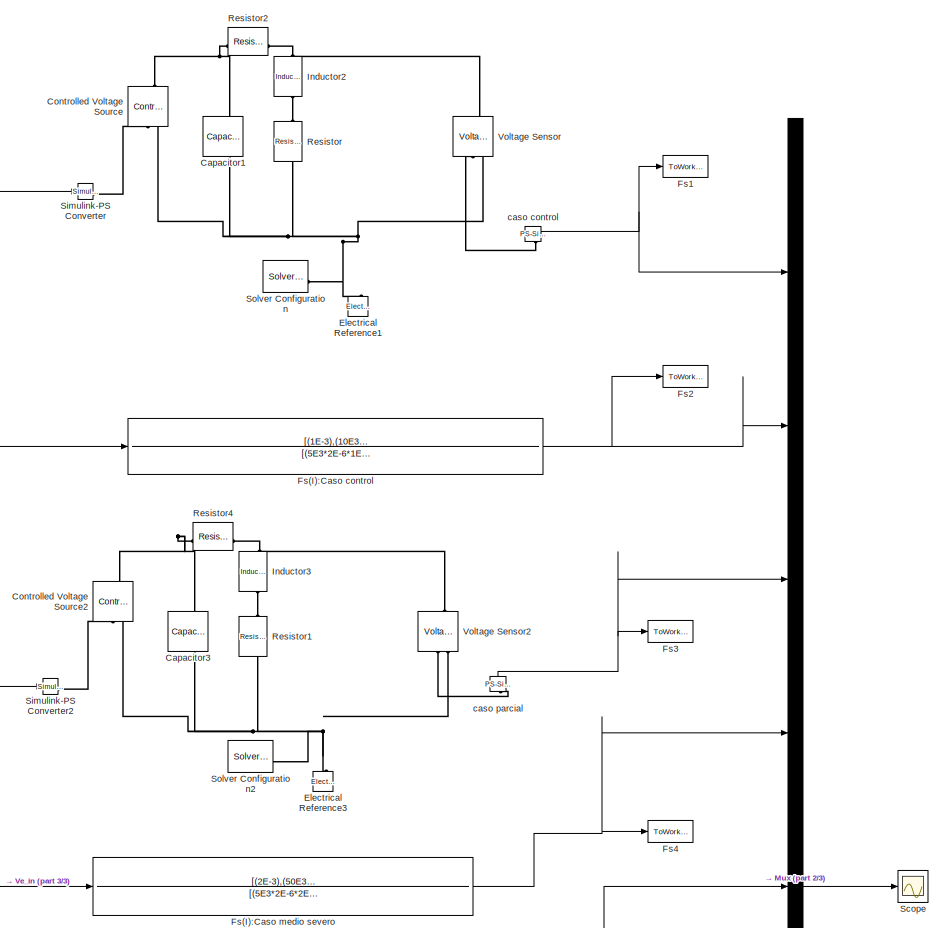
[diagram: root canvas - part 1/3, full width, top band]
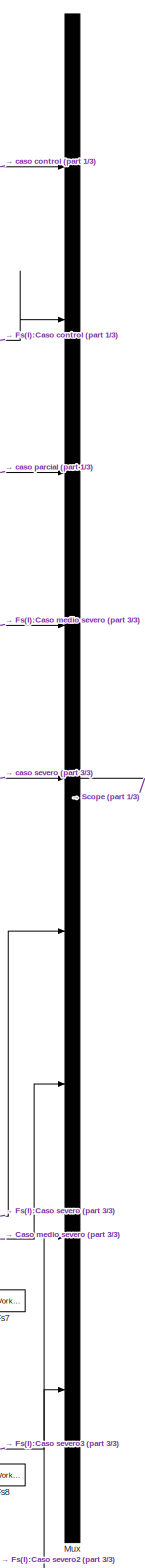
[diagram: root canvas - part 2/3, right side, full height]
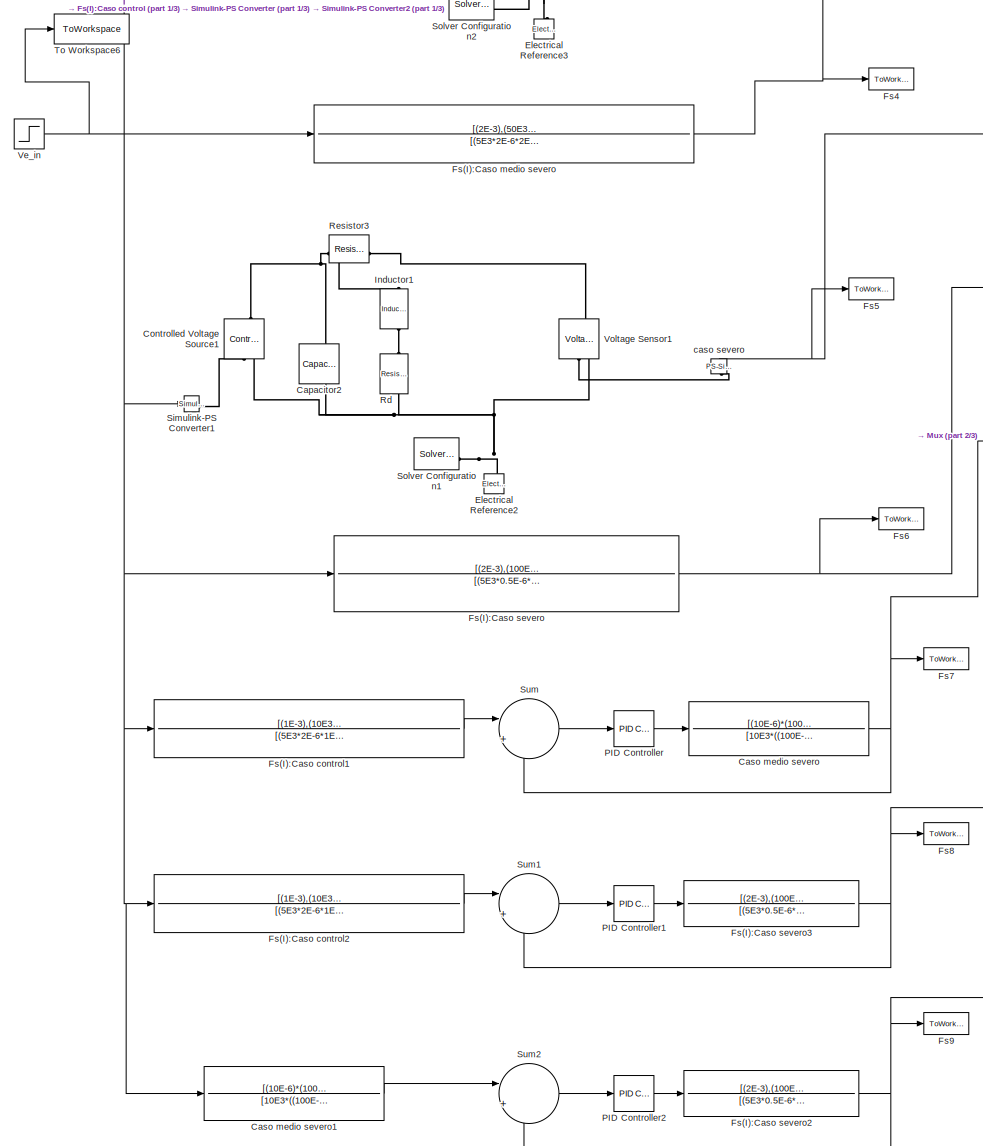
[diagram: root canvas - part 3/3, full width, bottom band]
MODEL slx_ab17da6a1537
KIND model
CONFIG AbsTol = auto
CONFIG EnableMultiTasking = off
CONFIG FixedStep = auto
CONFIG MaxStep = 1E-3
CONFIG MinStep = auto
CONFIG RelTol = 1e-3
CONFIG SampleTimeConstraint = Unconstrained
CONFIG SolverName = ode15s
CONFIG StartTime = 0.0
CONFIG StopTime = 10.0
BLOCK [Reference] Capacitor1  REF=fl_lib/Electrical/Electrical Elements/Capacitor
  NameLocation = left
  SourceBlock = fl_lib/Electrical/Electrical Elements/Capacitor
  SourceType = Capacitor
BLOCK [Reference] Capacitor2  REF=fl_lib/Electrical/Electrical Elements/Capacitor
  NameLocation = left
  SourceBlock = fl_lib/Electrical/Electrical Elements/Capacitor
  SourceType = Capacitor
BLOCK [Reference] Capacitor3  REF=fl_lib/Electrical/Electrical Elements/Capacitor
  NameLocation = left
  SourceBlock = fl_lib/Electrical/Electrical Elements/Capacitor
  SourceType = Capacitor
BLOCK [TransferFcn] Caso medio severo
  Denominator = [10E3*((100E-6)+(10E-6)),1]
  Numerator = [(10E-6)*(100),0.75]
BLOCK [TransferFcn] Caso medio severo1
  Denominator = [10E3*((100E-6)+(10E-6)),1]
  Numerator = [(10E-6)*(100),0.75]
BLOCK [Reference] Controlled Voltage Source  REF=fl_lib/Electrical/Electrical Sources/Controlled Voltage
Source
  NameLocation = right
  SourceBlock = fl_lib/Electrical/Electrical Sources/Controlled Voltage\nSource
  SourceType = Controlled Voltage\nSource
BLOCK [Reference] Controlled Voltage Source1  REF=fl_lib/Electrical/Electrical Sources/Controlled Voltage
Source
  NameLocation = right
  SourceBlock = fl_lib/Electrical/Electrical Sources/Controlled Voltage\nSource
  SourceType = Controlled Voltage\nSource
BLOCK [Reference] Controlled Voltage Source2  REF=fl_lib/Electrical/Electrical Sources/Controlled Voltage
Source
  NameLocation = right
  SourceBlock = fl_lib/Electrical/Electrical Sources/Controlled Voltage\nSource
  SourceType = Controlled Voltage\nSource
BLOCK [Reference] Electrical Reference1  REF=fl_lib/Electrical/Electrical Elements/Electrical Reference
  LibrarySourceBlock = ee_lib/Connectors &\nReferences/Electrical Reference
  NameLocation = right
  SourceBlock = fl_lib/Electrical/Electrical Elements/Electrical Reference
  SourceType = Electrical Reference
BLOCK [Reference] Electrical Reference2  REF=fl_lib/Electrical/Electrical Elements/Electrical Reference
  LibrarySourceBlock = ee_lib/Connectors &\nReferences/Electrical Reference
  NameLocation = right
  SourceBlock = fl_lib/Electrical/Electrical Elements/Electrical Reference
  SourceType = Electrical Reference
BLOCK [Reference] Electrical Reference3  REF=fl_lib/Electrical/Electrical Elements/Electrical Reference
  LibrarySourceBlock = ee_lib/Connectors &\nReferences/Electrical Reference
  NameLocation = right
  SourceBlock = fl_lib/Electrical/Electrical Elements/Electrical Reference
  SourceType = Electrical Reference
BLOCK [TransferFcn] Fs(I):Caso control
  Denominator = [(5E3*2E-6*1E-3),(1E-3+5E3*2E-6*10E3),(5E3+10E3)]
  Numerator = [(1E-3),(10E3)]
BLOCK [TransferFcn] Fs(I):Caso control1
  Denominator = [(5E3*2E-6*1E-3),(1E-3+5E3*2E-6*10E3),(5E3+10E3)]
  Numerator = [(1E-3),(10E3)]
BLOCK [TransferFcn] Fs(I):Caso control2
  Denominator = [(5E3*2E-6*1E-3),(1E-3+5E3*2E-6*10E3),(5E3+10E3)]
  Numerator = [(1E-3),(10E3)]
BLOCK [TransferFcn] Fs(I):Caso medio severo
  Denominator = [(5E3*2E-6*2E-3),(2E-3+5E3*2E-6*50E3),(5E3+50E3)]
  Numerator = [(2E-3),(50E3)]
BLOCK [TransferFcn] Fs(I):Caso severo
  Denominator = [(5E3*0.5E-6*2E-3),(2E-3+5E3*0.5E-6*100E3),(5E3+100E3)]
  Numerator = [(2E-3),(100E3)]
BLOCK [TransferFcn] Fs(I):Caso severo2
  Denominator = [(5E3*0.5E-6*2E-3),(2E-3+5E3*0.5E-6*100E3),(5E3+100E3)]
  Numerator = [(2E-3),(100E3)]
BLOCK [TransferFcn] Fs(I):Caso severo3
  Denominator = [(5E3*0.5E-6*2E-3),(2E-3+5E3*0.5E-6*100E3),(5E3+100E3)]
  Numerator = [(2E-3),(100E3)]
BLOCK [ToWorkspace] Fs1
  FixptAsFi = on
  MaxDataPoints = inf
  SampleTime = -1
  VariableName = Fs1
BLOCK [ToWorkspace] Fs2
  FixptAsFi = on
  MaxDataPoints = inf
  SampleTime = -1
  VariableName = Fs2
BLOCK [ToWorkspace] Fs3
  FixptAsFi = on
  MaxDataPoints = inf
  SampleTime = -1
  VariableName = Fs3
BLOCK [ToWorkspace] Fs4
  FixptAsFi = on
  MaxDataPoints = inf
  SampleTime = -1
  VariableName = Fs4
BLOCK [ToWorkspace] Fs5
  FixptAsFi = on
  MaxDataPoints = inf
  SampleTime = -1
  VariableName = Fs5
BLOCK [ToWorkspace] Fs6
  FixptAsFi = on
  MaxDataPoints = inf
  SampleTime = -1
  VariableName = Fs6
BLOCK [ToWorkspace] Fs7
  FixptAsFi = on
  MaxDataPoints = inf
  SampleTime = -1
  VariableName = Fs7
BLOCK [ToWorkspace] Fs8
  FixptAsFi = on
  MaxDataPoints = inf
  SampleTime = -1
  VariableName = Fs8
BLOCK [ToWorkspace] Fs9
  FixptAsFi = on
  MaxDataPoints = inf
  SampleTime = -1
  VariableName = Fs9
BLOCK [Reference] Inductor1  REF=fl_lib/Electrical/Electrical Elements/Inductor
  NameLocation = left
  SourceBlock = fl_lib/Electrical/Electrical Elements/Inductor
  SourceType = Inductor
BLOCK [Reference] Inductor2  REF=fl_lib/Electrical/Electrical Elements/Inductor
  NameLocation = left
  SourceBlock = fl_lib/Electrical/Electrical Elements/Inductor
  SourceType = Inductor
BLOCK [Reference] Inductor3  REF=fl_lib/Electrical/Electrical Elements/Inductor
  NameLocation = left
  SourceBlock = fl_lib/Electrical/Electrical Elements/Inductor
  SourceType = Inductor
BLOCK [Mux] Mux
  DisplayOption = bar
  Inputs = 9
BLOCK [Reference] PID Controller  REF=slpidlib/PID Controller
  LibrarySourceBlock = simulink/Continuous/PID Controller
  SourceBlock = slpidlib/PID Controller
  SourceType = PID 1dof
BLOCK [Reference] PID Controller1  REF=slpidlib/PID Controller
  LibrarySourceBlock = simulink/Continuous/PID Controller
  SourceBlock = slpidlib/PID Controller
  SourceType = PID 1dof
BLOCK [Reference] PID Controller2  REF=slpidlib/PID Controller
  LibrarySourceBlock = simulink/Continuous/PID Controller
  SourceBlock = slpidlib/PID Controller
  SourceType = PID 1dof
BLOCK [Reference] Rd  REF=fl_lib/Electrical/Electrical Elements/Resistor
  NameLocation = left
  SourceBlock = fl_lib/Electrical/Electrical Elements/Resistor
  SourceType = Resistor
BLOCK [Reference] Resistor  REF=fl_lib/Electrical/Electrical Elements/Resistor
  NameLocation = right
  SourceBlock = fl_lib/Electrical/Electrical Elements/Resistor
  SourceType = Resistor
BLOCK [Reference] Resistor1  REF=fl_lib/Electrical/Electrical Elements/Resistor
  NameLocation = right
  SourceBlock = fl_lib/Electrical/Electrical Elements/Resistor
  SourceType = Resistor
BLOCK [Reference] Resistor2  REF=fl_lib/Electrical/Electrical Elements/Resistor
  NameLocation = top
  SourceBlock = fl_lib/Electrical/Electrical Elements/Resistor
  SourceType = Resistor
BLOCK [Reference] Resistor3  REF=fl_lib/Electrical/Electrical Elements/Resistor
  NameLocation = top
  SourceBlock = fl_lib/Electrical/Electrical Elements/Resistor
  SourceType = Resistor
BLOCK [Reference] Resistor4  REF=fl_lib/Electrical/Electrical Elements/Resistor
  NameLocation = top
  SourceBlock = fl_lib/Electrical/Electrical Elements/Resistor
  SourceType = Resistor
BLOCK [Scope] Scope
  ActiveDisplayYMaximum = 1.1249943755905629
  ActiveDisplayYMinimum = -0.12499937506561808
  ContainerLayout = {"WindowBounds":[-8720,1363,711,765]}
  Floating = off
  GraphicalSettings = {"Style":{"BackgroundColor":[0.12941176470588237,0.12941176470588237,0.12941176470588237],"AxesColor":[0.07058823529411765,0.07058823529411765,0.07058823529411765],"LabelsColor":[0.8509803921568627,0.8509803921568627,0.8509803921568627],"PreserveColors":false,"Visible":[true,true,true,true,true,true,true,true,true],"LineStyle":["-","-","-","-","-","-","-","-","-"],"LineWidth":[1.5,1.5,1.5,1.5,1.5,...<+3043ch>
  MultipleDisplayCache = [{"MaxYLimMag":1.1249943755905629,"MaxYLimReal":1.1249943755905629,"MinYLimMag":0,"MinYLimReal":-0.12499937506561808,"PlotAsMagnitudePhase":false,"ShowGrid":true,"ShowLegend":true,"Title":"%<SignalLabel>","YLabel":""}]
  NumInputPorts = 1
  ScopeFrameLocation = window
  ShowLegend = on
  Visible = on
  WasSavedAsWebScope = on
  WindowPosition = [1280.000122,144.999939,713.000061,768.000061,]
BLOCK [Reference] Simulink-PS Converter  REF=nesl_utility/Simulink-PS
Converter
  SourceBlock = nesl_utility/Simulink-PS\nConverter
  SourceType = Simulink-PS\nConverter
BLOCK [Reference] Simulink-PS Converter1  REF=nesl_utility/Simulink-PS
Converter
  SourceBlock = nesl_utility/Simulink-PS\nConverter
  SourceType = Simulink-PS\nConverter
BLOCK [Reference] Simulink-PS Converter2  REF=nesl_utility/Simulink-PS
Converter
  SourceBlock = nesl_utility/Simulink-PS\nConverter
  SourceType = Simulink-PS\nConverter
BLOCK [Reference] Solver Configuration  REF=nesl_utility/Solver
Configuration
  SourceBlock = nesl_utility/Solver\nConfiguration
  SourceType = Solver\nConfiguration
BLOCK [Reference] Solver Configuration1  REF=nesl_utility/Solver
Configuration
  SourceBlock = nesl_utility/Solver\nConfiguration
  SourceType = Solver\nConfiguration
BLOCK [Reference] Solver Configuration2  REF=nesl_utility/Solver
Configuration
  SourceBlock = nesl_utility/Solver\nConfiguration
  SourceType = Solver\nConfiguration
BLOCK [Sum] Sum
  Inputs = |+-
BLOCK [Sum] Sum1
  Inputs = |+-
BLOCK [Sum] Sum2
  Inputs = |+-
BLOCK [ToWorkspace] To Workspace6
  FixptAsFi = on
  MaxDataPoints = inf
  SampleTime = -1
  VariableName = Ve
BLOCK [Step] Ve_in
  SampleTime = 0
BLOCK [Reference] Voltage Sensor  REF=fl_lib/Electrical/Electrical Sensors/Voltage Sensor
  NameLocation = right
  SourceBlock = fl_lib/Electrical/Electrical Sensors/Voltage Sensor
  SourceType = Voltage Sensor
BLOCK [Reference] Voltage Sensor1  REF=fl_lib/Electrical/Electrical Sensors/Voltage Sensor
  NameLocation = right
  SourceBlock = fl_lib/Electrical/Electrical Sensors/Voltage Sensor
  SourceType = Voltage Sensor
BLOCK [Reference] Voltage Sensor2  REF=fl_lib/Electrical/Electrical Sensors/Voltage Sensor
  NameLocation = right
  SourceBlock = fl_lib/Electrical/Electrical Sensors/Voltage Sensor
  SourceType = Voltage Sensor
BLOCK [Reference] caso control  REF=nesl_utility/PS-Simulink
Converter
  NameLocation = right
  SourceBlock = nesl_utility/PS-Simulink\nConverter
  SourceType = PS-Simulink\nConverter
BLOCK [Reference] caso parcial  REF=nesl_utility/PS-Simulink
Converter
  NameLocation = right
  SourceBlock = nesl_utility/PS-Simulink\nConverter
  SourceType = PS-Simulink\nConverter
BLOCK [Reference] caso severo  REF=nesl_utility/PS-Simulink
Converter
  NameLocation = right
  SourceBlock = nesl_utility/PS-Simulink\nConverter
  SourceType = PS-Simulink\nConverter
LINE Caso medio severo1:1 -> Sum2:1
NET Caso medio severo:1 -> Fs7:1, Mux:7, Sum:2
LINE Fs(I):Caso control1:1 -> Sum:1
LINE Fs(I):Caso control2:1 -> Sum1:1
NET Fs(I):Caso control:1 -> Fs2:1, Mux:2
NET Fs(I):Caso medio severo:1 -> Fs4:1, Mux:4
NET Fs(I):Caso severo2:1 -> Fs9:1, Mux:9, Sum2:2
NET Fs(I):Caso severo3:1 -> Fs8:1, Mux:8, Sum1:2
NET Fs(I):Caso severo:1 -> Fs6:1, Mux:6
LINE Mux:1 -> Scope:1
LINE PID Controller1:1 -> Fs(I):Caso severo3:1
LINE PID Controller2:1 -> Fs(I):Caso severo2:1
LINE PID Controller:1 -> Caso medio severo:1
LINE Sum1:1 -> PID Controller1:1
LINE Sum2:1 -> PID Controller2:1
LINE Sum:1 -> PID Controller:1
NET Ve_in:1 -> Caso medio severo1:1, Fs(I):Caso control1:1, Fs(I):Caso control2:1, Fs(I):Caso control:1, Fs(I):Caso medio severo:1, Fs(I):Caso severo:1, Simulink-PS Converter1:1, Simulink-PS Converter2:1, Simulink-PS Converter:1, To Workspace6:1
NET caso control:1 -> Fs1:1, Mux:1
NET caso parcial:1 -> Fs3:1, Mux:3
NET caso severo:1 -> Fs5:1, Mux:5
PNET net1: Capacitor1:LConn1 -- Controlled Voltage Source:LConn1 -- Resistor2:RConn1
PNET net2: Capacitor1:RConn1 -- Controlled Voltage Source:RConn2 -- Electrical Reference1:LConn1 -- Resistor:LConn1 -- Solver Configuration:RConn1 -- Voltage Sensor:RConn2
PNET net3: Capacitor2:LConn1 -- Controlled Voltage Source1:LConn1 -- Resistor3:RConn1
PNET net4: Capacitor2:RConn1 -- Controlled Voltage Source1:RConn2 -- Electrical Reference2:LConn1 -- Rd:RConn1 -- Solver Configuration1:RConn1 -- Voltage Sensor1:RConn2
PNET net5: Capacitor3:LConn1 -- Controlled Voltage Source2:LConn1 -- Resistor4:RConn1
PNET net6: Capacitor3:RConn1 -- Controlled Voltage Source2:RConn2 -- Electrical Reference3:LConn1 -- Resistor1:LConn1 -- Solver Configuration2:RConn1 -- Voltage Sensor2:RConn2
PLINE Controlled Voltage Source1:RConn1 -- Simulink-PS Converter1:RConn1
PLINE Controlled Voltage Source2:RConn1 -- Simulink-PS Converter2:RConn1
PLINE Controlled Voltage Source:RConn1 -- Simulink-PS Converter:RConn1
PNET net7: Inductor1:LConn1 -- Resistor3:LConn1 -- Voltage Sensor1:LConn1
PLINE Inductor1:RConn1 -- Rd:LConn1
PNET net8: Inductor2:LConn1 -- Resistor2:LConn1 -- Voltage Sensor:LConn1
PLINE Inductor2:RConn1 -- Resistor:RConn1
PNET net9: Inductor3:LConn1 -- Resistor4:LConn1 -- Voltage Sensor2:LConn1
PLINE Inductor3:RConn1 -- Resistor1:RConn1
PLINE Voltage Sensor1:RConn1 -- caso severo:LConn1
PLINE Voltage Sensor2:RConn1 -- caso parcial:LConn1
PLINE Voltage Sensor:RConn1 -- caso control:LConn1
note: NET lines group one-source signal fan-out (src -> all destinations, sorted); 1:1 wires keep LINE; PNET lines group multi-terminal physical nets as a canonical sorted terminal list (undirected conserving connections); 2-terminal nets keep the pairwise PLINE form
